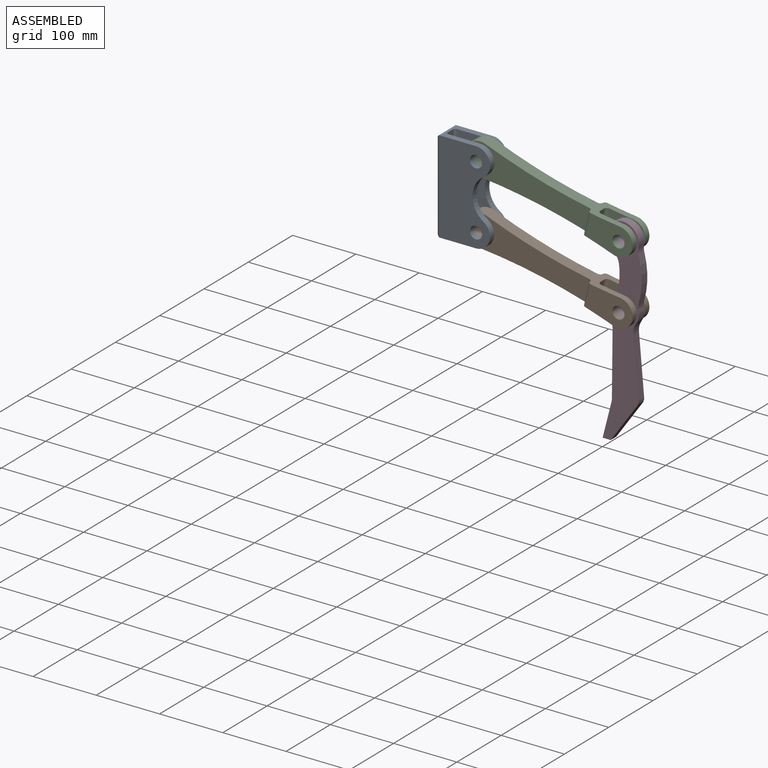
[diagram: assembled view]
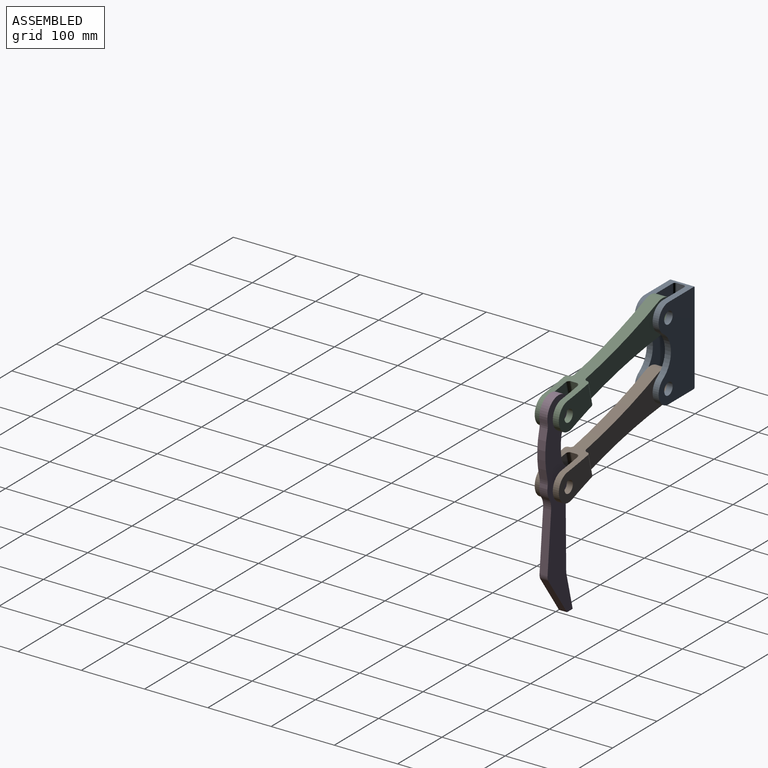
[diagram: assembled view, second angle]
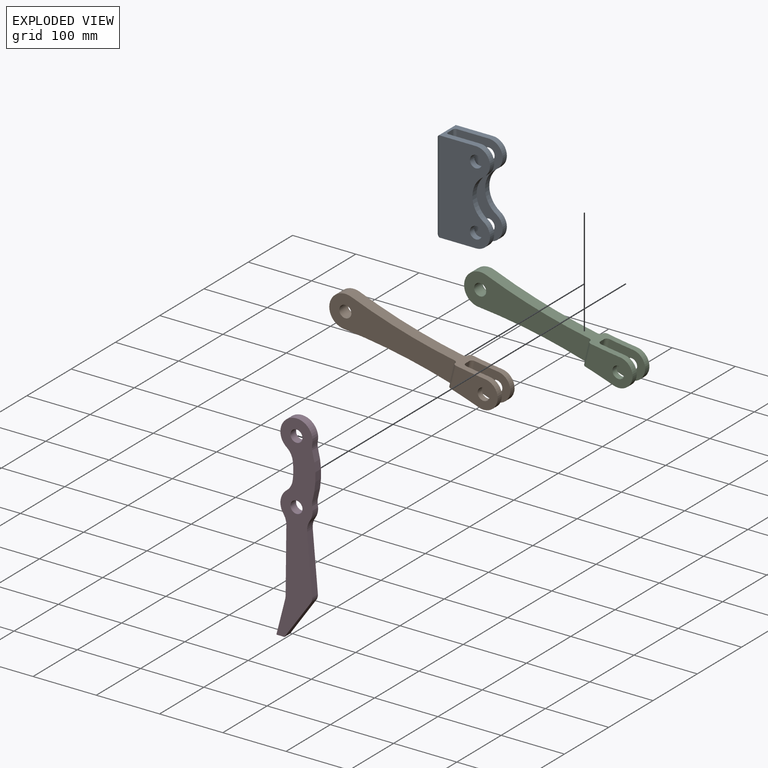
[diagram: exploded view]
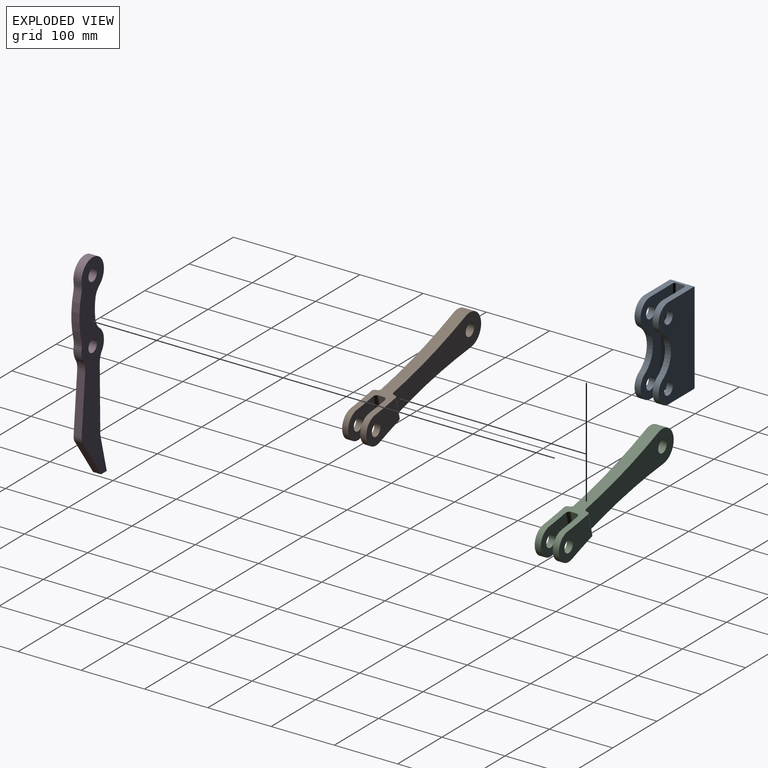
[diagram: exploded view, second angle]
ASSEMBLY  parts=4 mates=4
PART A: 24 faces, bbox 85.7x38.1x146.1 mm
  f0: cylinder r=38.1mm len=64.17mm, axis (0,1,0), area 726.7mm2, adj f1,f5,f13,f20
  f1: cylinder r=22.23mm len=40.94mm, axis (0,1,0), area 544.5mm2, adj f0,f2,f13,f20
  f2: plane 58.42x38.1mm, normal (0,0,1), area 1203.7mm2, adj f1,f8,f13,f14,f16,f17,f18,f19
  f3: plane 58.42x38.1mm, normal (0,0,-1), area 1203.7mm2, adj f5,f11,f13,f14,f15,f17,f18,f19
  f4: cylinder r=9.53mm len=19.05mm, axis (0,1,0), area 570mm2, adj f13,f20
  f5: cylinder r=22.23mm len=40.94mm, axis (0,1,0), area 544.5mm2, adj f0,f3,f13,f20
  f6: cylinder r=9.53mm len=19.05mm, axis (0,1,0), area 570mm2, adj f13,f20
  f7: cylinder r=38.1mm len=64.17mm, axis (0,1,0), area 726.7mm2, adj f8,f11,f14,f21
  f8: cylinder r=22.23mm len=40.94mm, axis (0,1,0), area 544.5mm2, adj f2,f7,f14,f21
  f9: plane 135.89x25.4mm, normal (-1,0,0), area 3451.6mm2, adj f15,f16,f17,f18
  f10: cylinder r=9.53mm len=19.05mm, axis (0,1,0), area 570mm2, adj f14,f21
  f11: cylinder r=22.23mm len=40.94mm, axis (0,1,0), area 544.5mm2, adj f3,f7,f14,f21
  f12: cylinder r=9.53mm len=19.05mm, axis (0,1,0), area 570mm2, adj f14,f21
  f13: plane 146.05x79.38mm, normal (0,-1,0), area 9246.6mm2, adj f0,f1,f2,f3,f4,f5,f6,f17
  f14: plane 146.05x79.38mm, normal (0,1,0), area 9246.6mm2, adj f2,f3,f7,f8,f10,f11,f12,f18
  f15: plane 37.84x5.08mm, normal (-0.71,0,-0.71), area 249.4mm2, adj f3,f9,f17,f18
  f16: plane 37.84x5.08mm, normal (-0.71,0,0.71), area 249.4mm2, adj f2,f9,f17,f18
  f17: cylinder r=6.35mm len=146.05mm, axis (0,0,1), area 1399.9mm2, adj f2,f3,f9,f13,f15,f16
  f18: cylinder r=6.35mm len=146.05mm, axis (0,0,-1), area 1399.9mm2, adj f2,f3,f9,f14,f15,f16
  f19: plane 146.05x11.43mm, normal (1,0,0), area 1669.4mm2, adj f2,f3,f22,f23
  f20: plane 146.05x72.39mm, normal (0,1,0), area 8226.4mm2, adj f0,f1,f2,f3,f4,f5,f6,f22
  f21: plane 146.05x72.39mm, normal (0,-1,0), area 8226.4mm2, adj f2,f3,f7,f8,f10,f11,f12,f23
  f22: cylinder r=3.81mm len=146.05mm, axis (0,0,-1), area 874.1mm2, adj f2,f3,f19,f20
  f23: cylinder r=3.81mm len=146.05mm, axis (0,0,1), area 874.1mm2, adj f2,f3,f19,f21
PART B: 23 faces, bbox 279.4x38.1x50.8 mm
  f0: plane 35.43x0.05mm, normal (-1,0,0), area 1.6mm2, adj f6,f7,f16,f17
  f1: plane 198.45x50.8mm, normal (0,-1,0), area 7213mm2, adj f5,f6,f7,f16,f22
  f2: plane 71.45x44.45mm, normal (0,-1,0), area 2455mm2, adj f3,f6,f7,f17,f21
  f3: cylinder r=22.23mm len=44.45mm, axis (0,-1,0), area 714.8mm2, adj f2,f6,f7,f11
  f4: cylinder r=22.23mm len=44.45mm, axis (0,-1,0), area 713.2mm2, adj f6,f7,f10,f12
  f5: cylinder r=25.4mm len=50.8mm, axis (0,-1,0), area 1656.5mm2, adj f1,f6,f7,f8
  f6: cylinder r=889mm len=225.69mm, axis (0,-1,0), area 4505.3mm2, adj f0,f1,f2,f3,f4,f5,f8,f9
  f7: cylinder r=889mm len=225.69mm, axis (0,-1,0), area 4505.3mm2, adj f0,f1,f2,f3,f4,f5,f8,f9
  f8: plane 198.45x50.8mm, normal (0,1,0), area 7213mm2, adj f5,f6,f7,f15,f22
  f9: plane 35.43x0.03mm, normal (-1,0,0), area 0.9mm2, adj f6,f7,f14,f15
  f10: plane 71.45x44.45mm, normal (0,1,0), area 2455mm2, adj f4,f6,f7,f14,f20
  f11: plane 61.6x44.45mm, normal (0,1,0), area 2094.1mm2, adj f3,f6,f7,f18,f21
  f12: plane 61.6x44.45mm, normal (0,-1,0), area 2094.1mm2, adj f4,f6,f7,f19,f20
  f13: plane 36.59x8.89mm, normal (1,0,0), area 325.3mm2, adj f6,f7,f18,f19
  f14: cylinder r=4.75mm len=35.99mm, axis (0,0,1), area 265.8mm2, adj f6,f7,f9,f10
  f15: cylinder r=4.75mm len=35.43mm, axis (0,0,1), area 263mm2, adj f6,f7,f8,f9
  f16: cylinder r=4.75mm len=35.43mm, axis (0,0,-1), area 263mm2, adj f0,f1,f6,f7
  f17: cylinder r=4.75mm len=35.99mm, axis (0,0,-1), area 265.8mm2, adj f0,f2,f6,f7
  f18: cylinder r=5.08mm len=37.3mm, axis (0,0,-1), area 294mm2, adj f6,f7,f11,f13
  f19: cylinder r=5.08mm len=37.3mm, axis (0,0,1), area 294mm2, adj f6,f7,f12,f13
  f20: cylinder r=9.53mm len=19.05mm, axis (0,-1,0), area 570mm2, adj f10,f12
  f21: cylinder r=9.53mm len=19.05mm, axis (0,-1,0), area 571.3mm2, adj f2,f11
  f22: cylinder r=9.53mm len=19.05mm, axis (0,-1,0), area 1140.1mm2, adj f1,f8
PART C: same geometry as B
PART D: 22 faces, bbox 61.8x12.7x317.5 mm
  f0: plane 91.76x12.7mm, normal (1,0,0.09), area 1170mm2, adj f12,f13,f14,f18
  f1: cylinder r=25.4mm len=19.08mm, axis (0,1,0), area 253.7mm2, adj f12,f13,f14,f15
  f2: cylinder r=127mm len=68.37mm, axis (0,1,0), area 879.2mm2, adj f12,f13,f15,f19
  f3: cylinder r=25.4mm len=50.8mm, axis (0,1,0), area 1370mm2, adj f12,f13,f19,f20
  f4: cylinder r=92.08mm len=29.37mm, axis (0,1,0), area 374.6mm2, adj f12,f13,f20,f21
  f5: cylinder r=25.4mm len=34.81mm, axis (0,1,0), area 493.7mm2, adj f12,f13,f16,f21
  f6: plane 100.55x12.7mm, normal (-1,0,0.01), area 1277.1mm2, adj f12,f13,f16,f17
  f7: plane 54.2x13.85mm, normal (-0.97,0,0.25), area 710.4mm2, adj f8,f12,f13,f17
  f8: plane 12.7x12.7mm, normal (0,0,-1), area 161.3mm2, adj f7,f11,f12,f13
  f9: cylinder r=9.53mm len=19.05mm, axis (0,1,0), area 760.1mm2, adj f12,f13
  f10: cylinder r=9.53mm len=19.05mm, axis (0,1,0), area 760.1mm2, adj f12,f13
  f11: plane 59.71x41.79mm, normal (0.82,0,-0.57), area 925.6mm2, adj f8,f12,f13,f18
  f12: plane 317.5x61.83mm, normal (0,-1,0), area 11173.6mm2, adj f0,f1,f2,f3,f4,f5,f6,f7
  f13: plane 317.5x61.83mm, normal (0,1,0), area 11173.6mm2, adj f0,f1,f2,f3,f4,f5,f6,f7
  f14: cylinder r=25.4mm len=16.44mm, axis (0,1,0), area 219.8mm2, adj f0,f1,f12,f13
  f15: cylinder r=25.4mm len=12.7mm, axis (0,-1,0), area 150.4mm2, adj f1,f2,f12,f13
  f16: cylinder r=25.4mm len=15.02mm, axis (0,1,0), area 203.2mm2, adj f5,f6,f12,f13
  f17: cylinder r=25.4mm len=12.7mm, axis (0,-1,0), area 77.1mm2, adj f6,f7,f12,f13
  f18: cylinder r=12.7mm len=12.7mm, axis (0,1,0), area 112.8mm2, adj f0,f11,f12,f13
  f19: cylinder r=25.4mm len=12.7mm, axis (0,-1,0), area 150.4mm2, adj f2,f3,f12,f13
  f20: cylinder r=25.4mm len=16.03mm, axis (0,1,0), area 242.5mm2, adj f3,f4,f12,f13
  f21: cylinder r=25.4mm len=16.03mm, axis (0,1,0), area 242.5mm2, adj f4,f5,f12,f13
PLACE A t=(-254,38.1,101.6)mm
PLACE B rot(axis=(0,1,0),13.5deg) t=(-206.48,19.05,-91.2)mm
PLACE C rot(axis=(0,1,0),13.5deg) t=(-206.48,19.05,10.4)mm
PLACE D rot(axis=(0,1,0),0deg) t=(-282.63,22.22,-155.72)mm
MATE revolute D.f3 <-> C.f20  axis (0,-1,0) through (225.37,9.52,-54.12)mm
MATE revolute B.f5 <-> A.f5  axis (0,-1,0) through (0,9.52,-101.6)mm
MATE revolute D.f9 <-> B.f20  axis (0,-1,0) through (225.37,9.52,-155.72)mm
MATE revolute C.f5 <-> A.f1  axis (0,-1,0) through (0,9.52,0)mm
